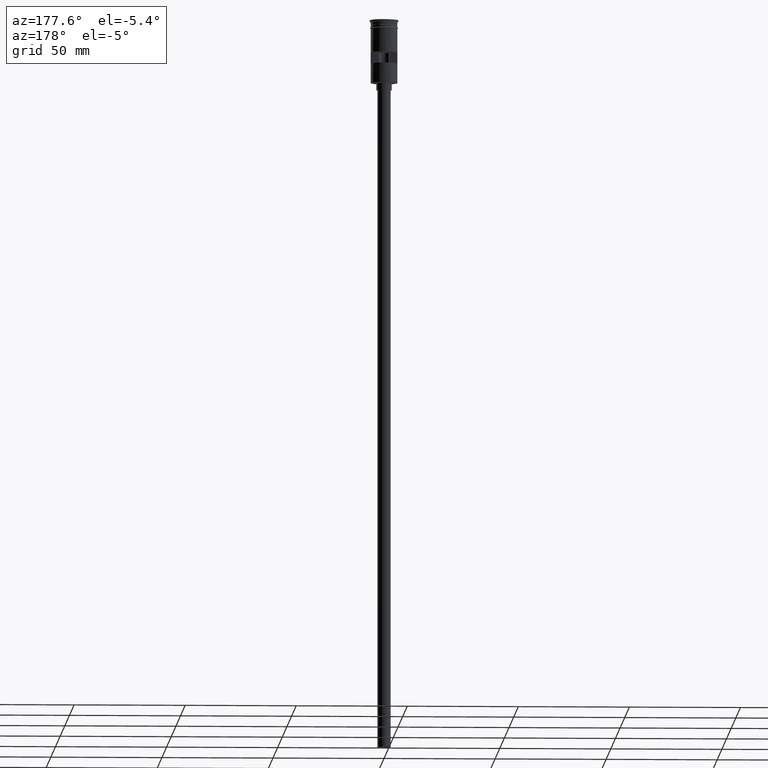
[diagram: clean part render]
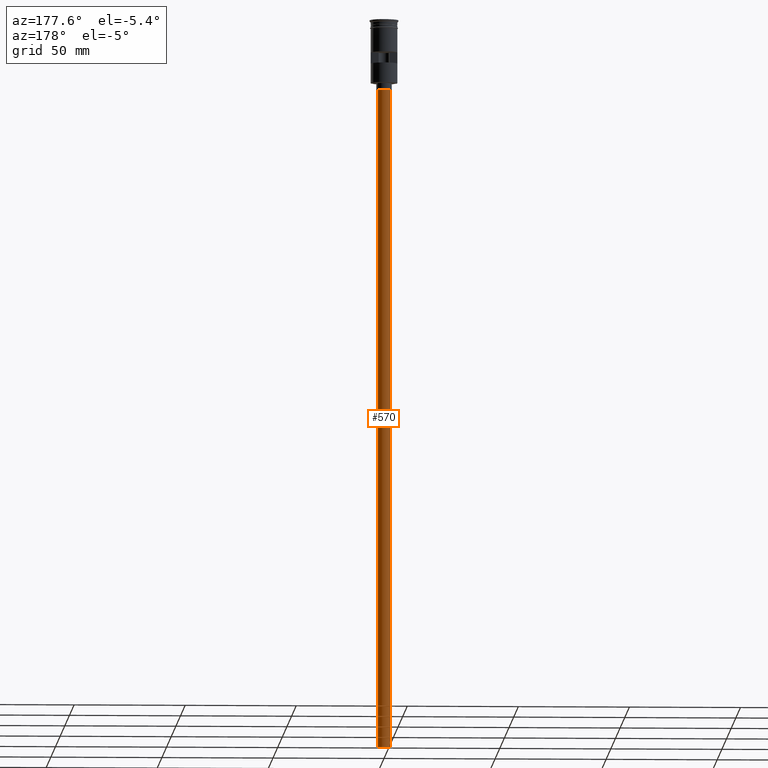
[diagram: same view with one face highlighted and labeled with its STEP entity id]
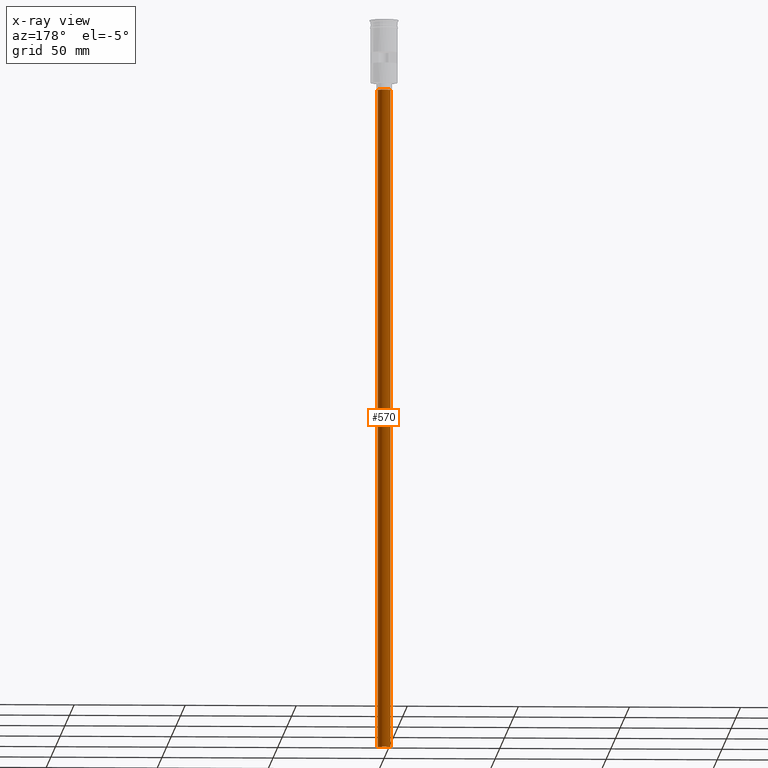
[diagram: x-ray of the same camera — body ghosted, the highlighted face saturated]
A machine part, auxiliary view. The second image highlights one B-rep face of the part: STEP entity #570.
The next image is the same camera in x-ray: the body ghosted, the highlighted face saturated — about 0% of this face is hidden behind the body in this view.
In plain terms, the highlighted cylindrical surface (edge-blend (fillet) strip) has radius 3 mm, axis along (-0, -0, 1).
Its self-contained STEP definition (entity closure, byte-faithful):
#8 = AXIS2_PLACEMENT_3D ( 'NONE', #906, #1382, #39 ) ;
#39 = DIRECTION ( 'NONE',  ( -1.000000000000000000, 0.000000000000000000, 0.000000000000000000 ) ) ;
#49 = VERTEX_POINT ( 'NONE', #1248 ) ;
#159 = VERTEX_POINT ( 'NONE', #1398 ) ;
#170 = DIRECTION ( 'NONE',  ( 1.000000000000000000, 0.000000000000000000, 0.000000000000000000 ) ) ;
#177 = EDGE_CURVE ( 'NONE', #1101, #1539, #645, .T. ) ;
#194 = CYLINDRICAL_SURFACE ( 'NONE', #240, 3.000000000000000444 ) ;
#217 = VECTOR ( 'NONE', #639, 1000.000000000000000 ) ;
#240 = AXIS2_PLACEMENT_3D ( 'NONE', #1276, #804, #170 ) ;
#259 = DIRECTION ( 'NONE',  ( -1.000000000000000000, 0.000000000000000000, 0.000000000000000000 ) ) ;
#303 = CARTESIAN_POINT ( 'NONE',  ( 3.000000000000000444, 0.000000000000000000, -328.5000000000000000 ) ) ;
#341 = AXIS2_PLACEMENT_3D ( 'NONE', #792, #1271, #259 ) ;
#405 = ORIENTED_EDGE ( 'NONE', *, *, #1012, .F. ) ;
#458 = ORIENTED_EDGE ( 'NONE', *, *, #1033, .F. ) ;
#570 = ADVANCED_FACE ( 'NONE', ( #1270 ), #194, .T. ) ;
#639 = DIRECTION ( 'NONE',  ( -0.000000000000000000, -0.000000000000000000, 1.000000000000000000 ) ) ;
#645 = CIRCLE ( 'NONE', #341, 3.000000000000000444 ) ;
#704 = CIRCLE ( 'NONE', #8, 3.000000000000000444 ) ;
#736 = DIRECTION ( 'NONE',  ( -0.000000000000000000, -0.000000000000000000, 1.000000000000000000 ) ) ;
#792 = CARTESIAN_POINT ( 'NONE',  ( 0.000000000000000000, 0.000000000000000000, -31.50000000000000000 ) ) ;
#804 = DIRECTION ( 'NONE',  ( -0.000000000000000000, -0.000000000000000000, 1.000000000000000000 ) ) ;
#906 = CARTESIAN_POINT ( 'NONE',  ( 0.000000000000000000, 0.000000000000000000, -328.5000000000000000 ) ) ;
#963 = VECTOR ( 'NONE', #736, 1000.000000000000000 ) ;
#976 = LINE ( 'NONE', #1217, #963 ) ;
#1012 = EDGE_CURVE ( 'NONE', #159, #49, #704, .T. ) ;
#1033 = EDGE_CURVE ( 'NONE', #49, #1539, #1401, .T. ) ;
#1080 = ORIENTED_EDGE ( 'NONE', *, *, #177, .T. ) ;
#1101 = VERTEX_POINT ( 'NONE', #1432 ) ;
#1217 = CARTESIAN_POINT ( 'NONE',  ( -3.000000000000000444, 3.673940397442060361E-16, -328.5000000000000000 ) ) ;
#1229 = EDGE_CURVE ( 'NONE', #159, #1101, #976, .T. ) ;
#1248 = CARTESIAN_POINT ( 'NONE',  ( 3.000000000000000444, 0.000000000000000000, -328.5000000000000000 ) ) ;
#1270 = FACE_OUTER_BOUND ( 'NONE', #1596, .T. ) ;
#1271 = DIRECTION ( 'NONE',  ( 0.000000000000000000, 0.000000000000000000, -1.000000000000000000 ) ) ;
#1276 = CARTESIAN_POINT ( 'NONE',  ( 0.000000000000000000, 0.000000000000000000, -328.5000000000000000 ) ) ;
#1382 = DIRECTION ( 'NONE',  ( 0.000000000000000000, 0.000000000000000000, -1.000000000000000000 ) ) ;
#1398 = CARTESIAN_POINT ( 'NONE',  ( -3.000000000000000444, 3.673940397442060361E-16, -328.5000000000000000 ) ) ;
#1401 = LINE ( 'NONE', #303, #217 ) ;
#1432 = CARTESIAN_POINT ( 'NONE',  ( -3.000000000000000444, 3.673940397442060361E-16, -31.50000000000000000 ) ) ;
#1539 = VERTEX_POINT ( 'NONE', #1549 ) ;
#1546 = ORIENTED_EDGE ( 'NONE', *, *, #1229, .T. ) ;
#1549 = CARTESIAN_POINT ( 'NONE',  ( 3.000000000000000444, 0.000000000000000000, -31.50000000000000000 ) ) ;
#1596 = EDGE_LOOP ( 'NONE', ( #405, #1546, #1080, #458 ) ) ;